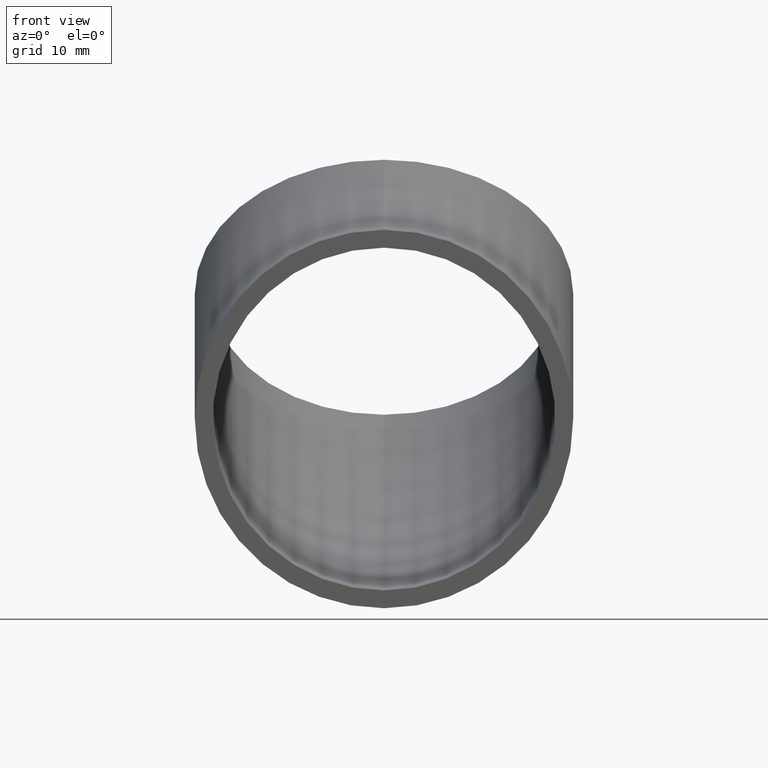
[diagram: clean part render]
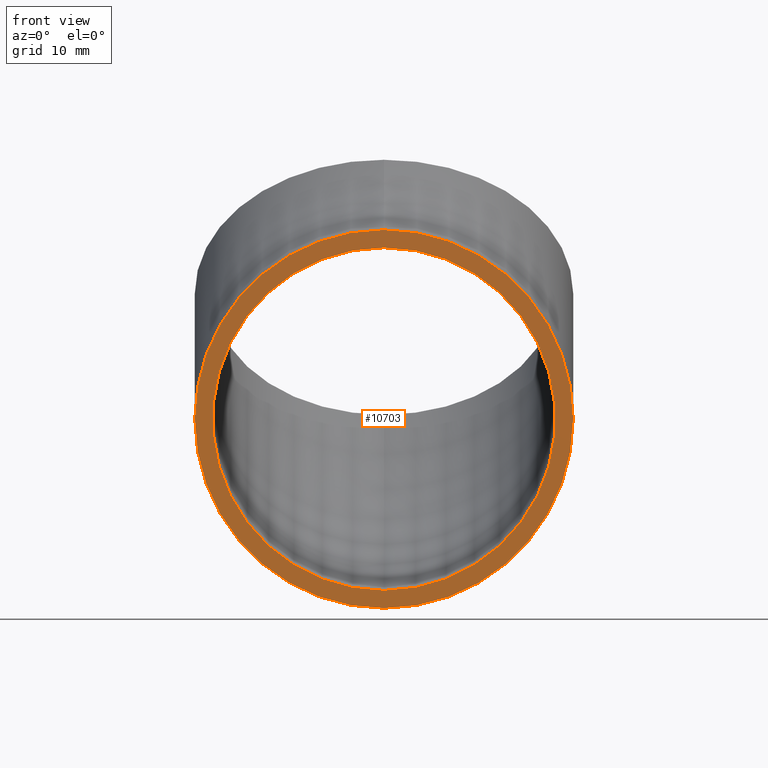
[diagram: same view with one face highlighted and labeled with its STEP entity id]
A machine part, front view. The second image highlights one B-rep face of the part: STEP entity #10703.
In plain terms, the highlighted planar face has unit normal (0, 1, 0).
Its self-contained STEP definition (entity closure, byte-faithful):
#38 = EDGE_CURVE ( 'NONE', #3568, #5658, #7345, .T. ) ;
#187 = DIRECTION ( 'NONE',  ( 0.0000000000000000000, 1.000000000000000000, 0.0000000000000000000 ) ) ;
#218 = DIRECTION ( 'NONE',  ( 0.0000000000000000000, 0.0000000000000000000, 1.000000000000000000 ) ) ;
#355 = VERTEX_POINT ( 'NONE', #9941 ) ;
#595 = AXIS2_PLACEMENT_3D ( 'NONE', #1353, #7433, #5722 ) ;
#937 = FACE_OUTER_BOUND ( 'NONE', #2151, .T. ) ;
#1287 = CARTESIAN_POINT ( 'NONE',  ( 0.0000000000000000000, 0.0000000000000000000, -48.00000000000000000 ) ) ;
#1353 = CARTESIAN_POINT ( 'NONE',  ( 0.0000000000000000000, 0.0000000000000000000, -48.00000000000000000 ) ) ;
#1465 = DIRECTION ( 'NONE',  ( 0.0000000000000000000, 0.0000000000000000000, 1.000000000000000000 ) ) ;
#2151 = EDGE_LOOP ( 'NONE', ( #10671, #2363 ) ) ;
#2152 = ORIENTED_EDGE ( 'NONE', *, *, #5966, .T. ) ;
#2363 = ORIENTED_EDGE ( 'NONE', *, *, #38, .F. ) ;
#2427 = AXIS2_PLACEMENT_3D ( 'NONE', #1287, #8110, #3832 ) ;
#2608 = CARTESIAN_POINT ( 'NONE',  ( 0.0000000000000000000, 0.0000000000000000000, -48.00000000000000000 ) ) ;
#2667 = CIRCLE ( 'NONE', #4460, 21.19999999999999900 ) ;
#2799 = CIRCLE ( 'NONE', #5326, 19.20000000000000300 ) ;
#2888 = EDGE_LOOP ( 'NONE', ( #2152, #3151 ) ) ;
#3074 = CARTESIAN_POINT ( 'NONE',  ( 0.0000000000000000000, 0.0000000000000000000, -67.20000000000000300 ) ) ;
#3151 = ORIENTED_EDGE ( 'NONE', *, *, #5882, .T. ) ;
#3568 = VERTEX_POINT ( 'NONE', #6362 ) ;
#3832 = DIRECTION ( 'NONE',  ( 0.0000000000000000000, 0.0000000000000000000, 1.000000000000000000 ) ) ;
#3929 = CARTESIAN_POINT ( 'NONE',  ( 0.0000000000000000000, 0.0000000000000000000, -26.80000000000000100 ) ) ;
#4460 = AXIS2_PLACEMENT_3D ( 'NONE', #2608, #6116, #6859 ) ;
#4646 = EDGE_CURVE ( 'NONE', #5658, #3568, #2667, .T. ) ;
#5326 = AXIS2_PLACEMENT_3D ( 'NONE', #10627, #187, #218 ) ;
#5401 = AXIS2_PLACEMENT_3D ( 'NONE', #6680, #6570, #1465 ) ;
#5503 = FACE_BOUND ( 'NONE', #2888, .T. ) ;
#5658 = VERTEX_POINT ( 'NONE', #3929 ) ;
#5722 = DIRECTION ( 'NONE',  ( 0.0000000000000000000, -0.0000000000000000000, 1.000000000000000000 ) ) ;
#5882 = EDGE_CURVE ( 'NONE', #10724, #355, #2799, .T. ) ;
#5966 = EDGE_CURVE ( 'NONE', #355, #10724, #6044, .T. ) ;
#6044 = CIRCLE ( 'NONE', #2427, 19.20000000000000300 ) ;
#6116 = DIRECTION ( 'NONE',  ( 0.0000000000000000000, 1.000000000000000000, 0.0000000000000000000 ) ) ;
#6362 = CARTESIAN_POINT ( 'NONE',  ( 0.0000000000000000000, 0.0000000000000000000, -69.20000000000000300 ) ) ;
#6570 = DIRECTION ( 'NONE',  ( 0.0000000000000000000, 1.000000000000000000, 0.0000000000000000000 ) ) ;
#6680 = CARTESIAN_POINT ( 'NONE',  ( 0.0000000000000000000, 0.0000000000000000000, -48.00000000000000000 ) ) ;
#6859 = DIRECTION ( 'NONE',  ( 0.0000000000000000000, 0.0000000000000000000, 1.000000000000000000 ) ) ;
#7345 = CIRCLE ( 'NONE', #5401, 21.19999999999999900 ) ;
#7433 = DIRECTION ( 'NONE',  ( 0.0000000000000000000, 1.000000000000000000, 0.0000000000000000000 ) ) ;
#8110 = DIRECTION ( 'NONE',  ( 0.0000000000000000000, 1.000000000000000000, 0.0000000000000000000 ) ) ;
#9930 = PLANE ( 'NONE',  #595 ) ;
#9941 = CARTESIAN_POINT ( 'NONE',  ( 0.0000000000000000000, 0.0000000000000000000, -28.80000000000000100 ) ) ;
#10627 = CARTESIAN_POINT ( 'NONE',  ( 0.0000000000000000000, 0.0000000000000000000, -48.00000000000000000 ) ) ;
#10671 = ORIENTED_EDGE ( 'NONE', *, *, #4646, .F. ) ;
#10703 = ADVANCED_FACE ( 'NONE', ( #5503, #937 ), #9930, .F. ) ;
#10724 = VERTEX_POINT ( 'NONE', #3074 ) ;